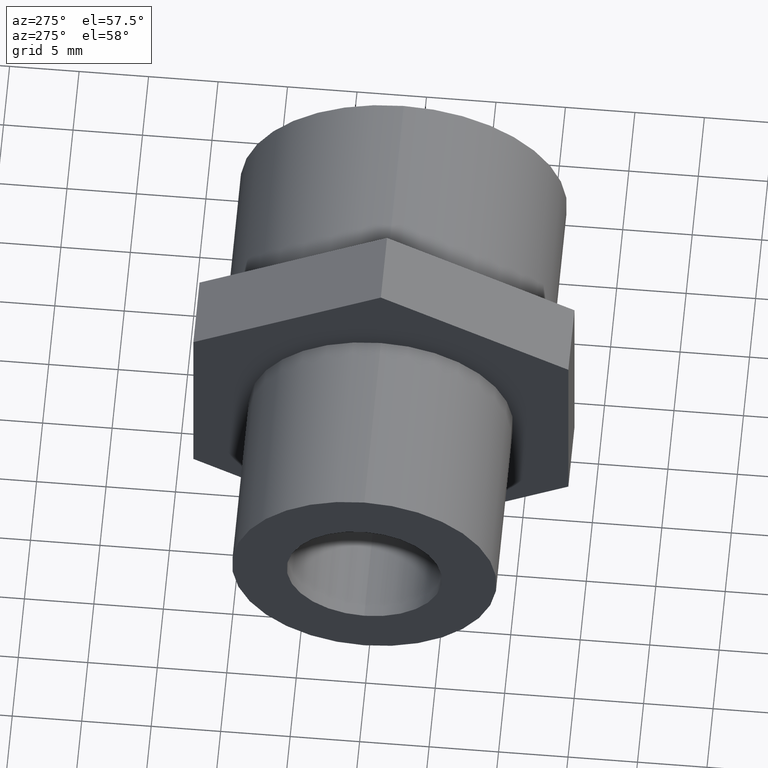
[diagram: clean part render]
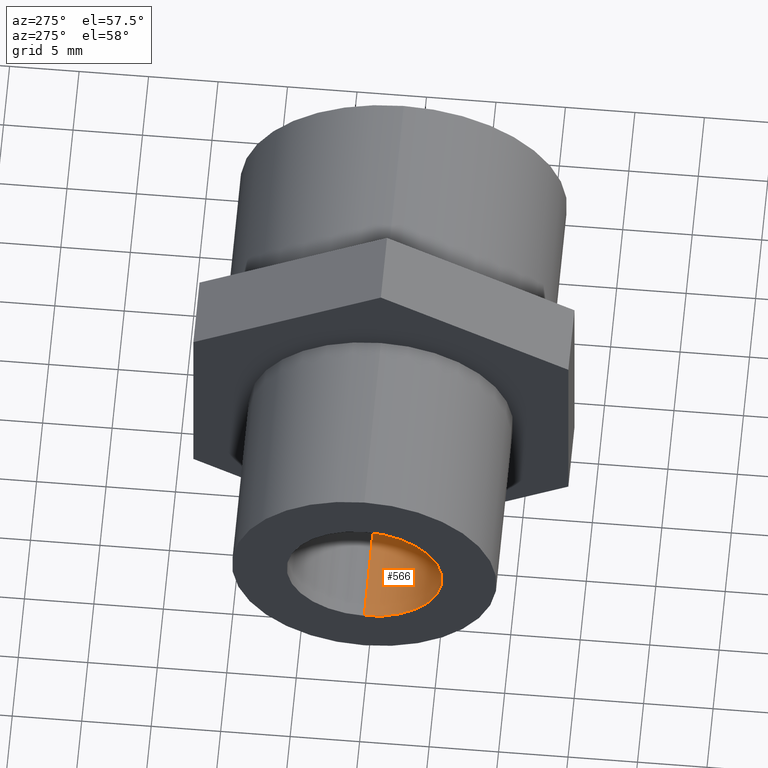
[diagram: same view with one face highlighted and labeled with its STEP entity id]
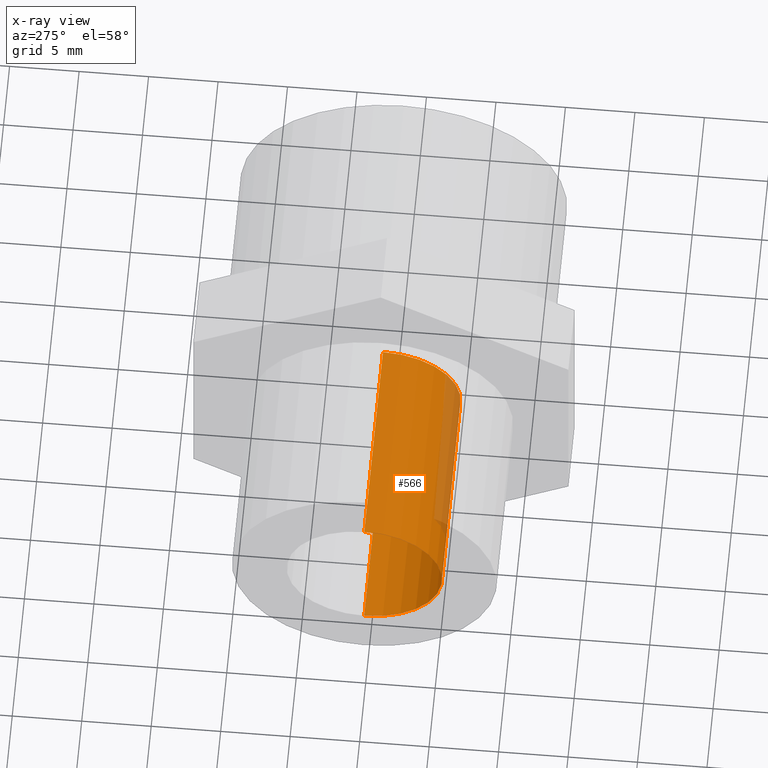
[diagram: x-ray of the same camera — body ghosted, the highlighted face saturated]
A machine part, auxiliary view. The second image highlights one B-rep face of the part: STEP entity #566.
The next image is the same camera in x-ray: the body ghosted, the highlighted face saturated — about 11% of this face is hidden behind the body in this view.
In plain terms, the highlighted cylindrical surface (partial cylindrical patch) has radius 5.588 mm, axis along (-1, -0, -0).
Its self-contained STEP definition (entity closure, byte-faithful):
#1 = LINE ( 'NONE', #13, #64 ) ;
#7 = ORIENTED_EDGE ( 'NONE', *, *, #133, .F. ) ;
#13 = CARTESIAN_POINT ( 'NONE',  ( 0.6399999999999996800, 2.694222958124177300E-017, -0.2200000000000000000 ) ) ;
#17 = VERTEX_POINT ( 'NONE', #381 ) ;
#46 = ORIENTED_EDGE ( 'NONE', *, *, #436, .T. ) ;
#62 = FACE_OUTER_BOUND ( 'NONE', #437, .T. ) ;
#64 = VECTOR ( 'NONE', #241, 39.37007874015748100 ) ;
#93 = CARTESIAN_POINT ( 'NONE',  ( -0.03175426480542933900, 2.694222958124177300E-017, -0.2200000000000000000 ) ) ;
#96 = ORIENTED_EDGE ( 'NONE', *, *, #159, .T. ) ;
#133 = EDGE_CURVE ( 'NONE', #292, #17, #474, .T. ) ;
#158 = CARTESIAN_POINT ( 'NONE',  ( -0.6360000000000000100, 2.694222958124177300E-017, -0.2200000000000000000 ) ) ;
#159 = EDGE_CURVE ( 'NONE', #369, #17, #603, .T. ) ;
#172 = AXIS2_PLACEMENT_3D ( 'NONE', #640, #341, #295 ) ;
#180 = VERTEX_POINT ( 'NONE', #93 ) ;
#212 = CIRCLE ( 'NONE', #445, 0.2200000000000000000 ) ;
#217 = ORIENTED_EDGE ( 'NONE', *, *, #540, .T. ) ;
#233 = CARTESIAN_POINT ( 'NONE',  ( -0.03175426480542933900, 0.0000000000000000000, 0.2200000000000000000 ) ) ;
#241 = DIRECTION ( 'NONE',  ( -1.000000000000000000, -0.0000000000000000000, -0.0000000000000000000 ) ) ;
#271 = AXIS2_PLACEMENT_3D ( 'NONE', #507, #533, #531 ) ;
#287 = DIRECTION ( 'NONE',  ( 1.000000000000000000, 0.0000000000000000000, 0.0000000000000000000 ) ) ;
#292 = VERTEX_POINT ( 'NONE', #233 ) ;
#294 = DIRECTION ( 'NONE',  ( -1.000000000000000000, -0.0000000000000000000, -0.0000000000000000000 ) ) ;
#295 = DIRECTION ( 'NONE',  ( 0.0000000000000000000, 0.0000000000000000000, 1.000000000000000000 ) ) ;
#315 = CARTESIAN_POINT ( 'NONE',  ( 0.6399999999999996800, 0.0000000000000000000, 0.2200000000000000000 ) ) ;
#341 = DIRECTION ( 'NONE',  ( -1.000000000000000000, -0.0000000000000000000, -0.0000000000000000000 ) ) ;
#369 = VERTEX_POINT ( 'NONE', #158 ) ;
#381 = CARTESIAN_POINT ( 'NONE',  ( -0.6360000000000000100, 0.0000000000000000000, 0.2200000000000000000 ) ) ;
#436 = EDGE_CURVE ( 'NONE', #292, #180, #212, .T. ) ;
#437 = EDGE_LOOP ( 'NONE', ( #46, #217, #96, #7 ) ) ;
#445 = AXIS2_PLACEMENT_3D ( 'NONE', #575, #287, #635 ) ;
#474 = LINE ( 'NONE', #315, #613 ) ;
#507 = CARTESIAN_POINT ( 'NONE',  ( -0.6360000000000000100, 0.0000000000000000000, 0.0000000000000000000 ) ) ;
#531 = DIRECTION ( 'NONE',  ( 0.0000000000000000000, 0.0000000000000000000, 1.000000000000000000 ) ) ;
#533 = DIRECTION ( 'NONE',  ( -1.000000000000000000, 0.0000000000000000000, 0.0000000000000000000 ) ) ;
#540 = EDGE_CURVE ( 'NONE', #180, #369, #1, .T. ) ;
#566 = ADVANCED_FACE ( 'NONE', ( #62 ), #629, .F. ) ;
#575 = CARTESIAN_POINT ( 'NONE',  ( -0.03175426480542933900, 0.0000000000000000000, 0.0000000000000000000 ) ) ;
#603 = CIRCLE ( 'NONE', #271, 0.2200000000000000000 ) ;
#613 = VECTOR ( 'NONE', #294, 39.37007874015748100 ) ;
#629 = CYLINDRICAL_SURFACE ( 'NONE', #172, 0.2200000000000000000 ) ;
#635 = DIRECTION ( 'NONE',  ( 0.0000000000000000000, 0.0000000000000000000, -1.000000000000000000 ) ) ;
#640 = CARTESIAN_POINT ( 'NONE',  ( 0.6399999999999996800, 0.0000000000000000000, 0.0000000000000000000 ) ) ;